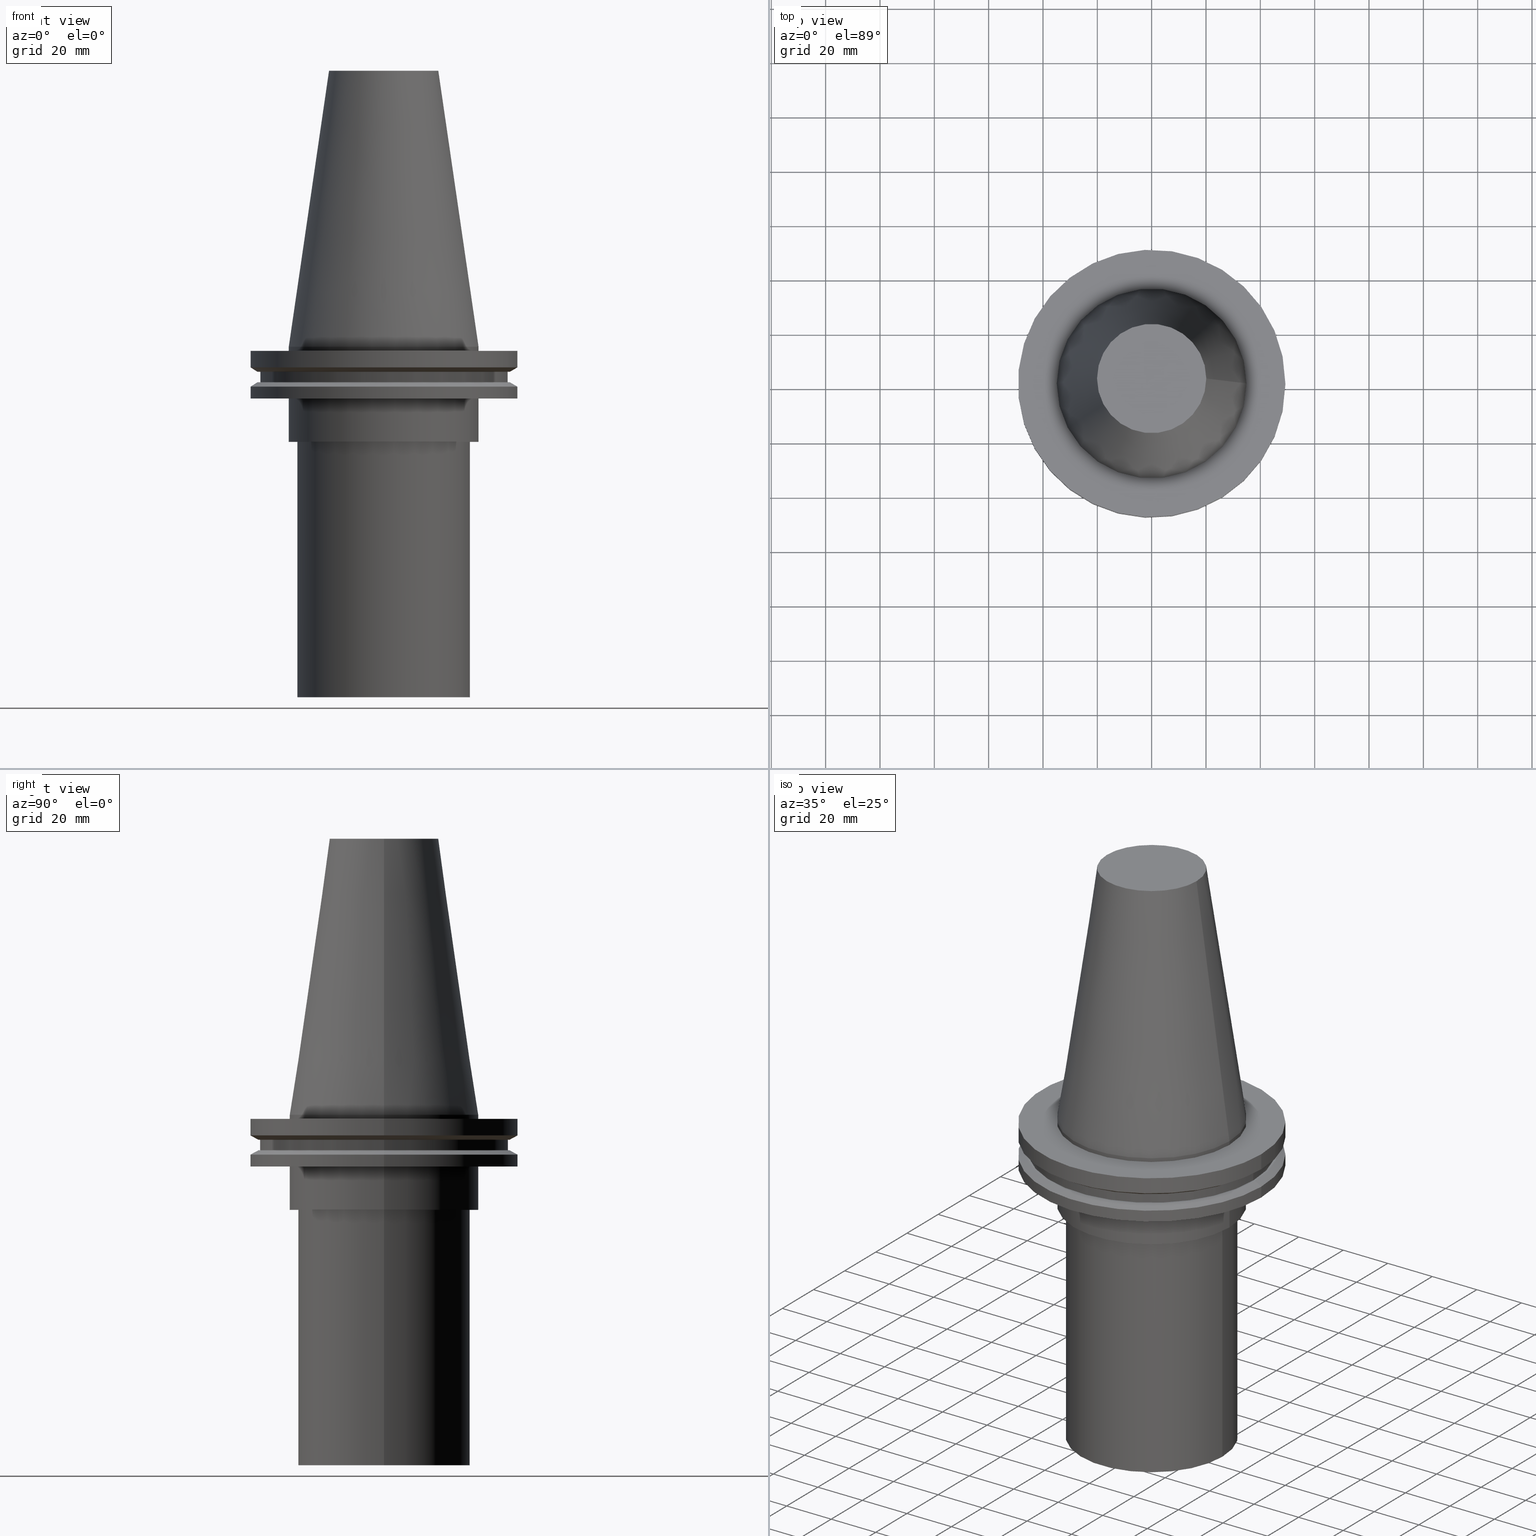
[diagram: canonical four-view strip — front | top / right | iso, engineering-drawing reading convention]
A machine part, canonical four-view strip (front | top / right | iso — engineering-drawing reading convention). The complete STEP part file that produces these views, byte-faithful:
ISO-10303-21;
HEADER;
FILE_DESCRIPTION (( 'STEP AP203' ),
    '1' );
FILE_NAME ('11.368.664.stp',
    '2022-03-09T15:22:07',
    ( '' ),
    ( '' ),
    'SwSTEP 2.0',
    'SolidWorks 2021',
    '' );
FILE_SCHEMA (( 'CONFIG_CONTROL_DESIGN' ));
ENDSEC;

DATA;
#1 = FACE_OUTER_BOUND ( 'NONE', #383, .T. ) ;
#2 = COORDINATED_UNIVERSAL_TIME_OFFSET ( 6, 0, .BEHIND. ) ;
#3 = CARTESIAN_POINT ( 'NONE',  ( 49.21499999999998920, 0.000000000000000000, -19.04999999999999716 ) ) ;
#4 = CONICAL_SURFACE ( 'NONE', #206, 34.92499999999999005, 0.1448138465474119452 ) ;
#5 =( LENGTH_UNIT ( ) NAMED_UNIT ( * ) SI_UNIT ( .MILLI., .METRE. ) );
#6 = FACE_OUTER_BOUND ( 'NONE', #294, .T. ) ;
#7 = EDGE_LOOP ( 'NONE', ( #59 ) ) ;
#8 = CARTESIAN_POINT ( 'NONE',  ( 0.000000000000000000, 0.000000000000000000, -129.0000000000000000 ) ) ;
#9 = EDGE_LOOP ( 'NONE', ( #173 ) ) ;
#10 = DIRECTION ( 'NONE',  ( 0.000000000000000000, -0.000000000000000000, 1.000000000000000000 ) ) ;
#11 = AXIS2_PLACEMENT_3D ( 'NONE', #317, #38, #163 ) ;
#12 = CIRCLE ( 'NONE', #74, 49.21499999999999631 ) ;
#13 = FACE_OUTER_BOUND ( 'NONE', #202, .T. ) ;
#14 = EDGE_LOOP ( 'NONE', ( #267 ) ) ;
#15 = ADVANCED_FACE ( 'NONE', ( #327, #46 ), #73, .F. ) ;
#16 = APPLICATION_CONTEXT ( 'configuration controlled 3d designs of mechanical parts and assemblies' ) ;
#17 = ORIENTED_EDGE ( 'NONE', *, *, #205, .T. ) ;
#18 = PERSON_AND_ORGANIZATION ( #360, #65 ) ;
#19 = EDGE_CURVE ( 'NONE', #276, #276, #321, .T. ) ;
#20 = EDGE_LOOP ( 'NONE', ( #157 ) ) ;
#21 = CIRCLE ( 'NONE', #354, 45.64500000000000313 ) ;
#22 = AXIS2_PLACEMENT_3D ( 'NONE', #50, #365, #24 ) ;
#23 = AXIS2_PLACEMENT_3D ( 'NONE', #291, #290, #171 ) ;
#24 = DIRECTION ( 'NONE',  ( 1.000000000000000000, 0.000000000000000000, 0.000000000000000000 ) ) ;
#25 = DIRECTION ( 'NONE',  ( 1.000000000000000000, 0.000000000000000000, 0.000000000000000000 ) ) ;
#26 = AXIS2_PLACEMENT_3D ( 'NONE', #187, #36, #162 ) ;
#27 = FACE_OUTER_BOUND ( 'NONE', #235, .T. ) ;
#28 = DIRECTION ( 'NONE',  ( -1.000000000000000000, 0.000000000000000000, 0.000000000000000000 ) ) ;
#29 = VERTEX_POINT ( 'NONE', #88 ) ;
#30 = CC_DESIGN_APPROVAL ( #100, ( #238 ) ) ;
#31 = DIRECTION ( 'NONE',  ( 0.000000000000000000, 0.000000000000000000, -1.000000000000000000 ) ) ;
#32 = AXIS2_PLACEMENT_3D ( 'NONE', #8, #57, #314 ) ;
#33 = DATE_TIME_ROLE ( 'creation_date' ) ;
#34 = DIRECTION ( 'NONE',  ( -0.000000000000000000, -0.000000000000000000, 1.000000000000000000 ) ) ;
#35 = APPROVAL_STATUS ( 'not_yet_approved' ) ;
#36 = DIRECTION ( 'NONE',  ( 0.000000000000000000, -0.000000000000000000, 1.000000000000000000 ) ) ;
#37 = CARTESIAN_POINT ( 'NONE',  ( 20.10819343178871321, 0.000000000000000000, 101.5999999999999801 ) ) ;
#38 = DIRECTION ( 'NONE',  ( -0.000000000000000000, -0.000000000000000000, 1.000000000000000000 ) ) ;
#39 = EDGE_LOOP ( 'NONE', ( #227 ) ) ;
#40 = PERSON_AND_ORGANIZATION ( #360, #65 ) ;
#41 = ADVANCED_FACE ( 'NONE', ( #166, #322 ), #229, .F. ) ;
#42 = CARTESIAN_POINT ( 'NONE',  ( 0.000000000000000000, 0.000000000000000000, -14.65761014474876944 ) ) ;
#43 = AXIS2_PLACEMENT_3D ( 'NONE', #92, #155, #279 ) ;
#44 = APPROVAL ( #35, 'UNSPECIFIED' ) ;
#45 = DIRECTION ( 'NONE',  ( -0.000000000000000000, -0.000000000000000000, 1.000000000000000000 ) ) ;
#46 = FACE_OUTER_BOUND ( 'NONE', #20, .T. ) ;
#47 = DIRECTION ( 'NONE',  ( 0.000000000000000000, 0.000000000000000000, -1.000000000000000000 ) ) ;
#48 = EDGE_LOOP ( 'NONE', ( #75 ) ) ;
#49 = AXIS2_PLACEMENT_3D ( 'NONE', #274, #333, #244 ) ;
#50 = CARTESIAN_POINT ( 'NONE',  ( 0.000000000000000000, 0.000000000000000000, 0.000000000000000000 ) ) ;
#51 = EDGE_CURVE ( 'NONE', #123, #123, #134, .T. ) ;
#52 = CIRCLE ( 'NONE', #176, 49.21500000000000341 ) ;
#53 = PLANE ( 'NONE',  #245 ) ;
#54 = DIRECTION ( 'NONE',  ( 1.000000000000000000, 0.000000000000000000, 0.000000000000000000 ) ) ;
#55 = AXIS2_PLACEMENT_3D ( 'NONE', #386, #136, #167 ) ;
#56 = APPROVAL_ROLE ( '' ) ;
#57 = DIRECTION ( 'NONE',  ( -0.000000000000000000, -0.000000000000000000, 1.000000000000000000 ) ) ;
#58 = EDGE_CURVE ( 'NONE', #370, #370, #70, .T. ) ;
#59 = ORIENTED_EDGE ( 'NONE', *, *, #19, .T. ) ;
#60 = CALENDAR_DATE ( 2022, 9, 3 ) ;
#61 = CARTESIAN_POINT ( 'NONE',  ( 0.000000000000000000, 0.000000000000000000, -9.204999999999991189 ) ) ;
#62 = EDGE_LOOP ( 'NONE', ( #248 ) ) ;
#63 = EDGE_LOOP ( 'NONE', ( #298 ) ) ;
#64 = DIRECTION ( 'NONE',  ( 1.000000000000000000, 0.000000000000000000, 0.000000000000000000 ) ) ;
#65 = ORGANIZATION ( 'UNSPECIFIED', 'UNSPECIFIED', '' ) ;
#66 = CC_DESIGN_PERSON_AND_ORGANIZATION_ASSIGNMENT ( #40, #359, ( #238 ) ) ;
#67 = AXIS2_PLACEMENT_3D ( 'NONE', #87, #117, #305 ) ;
#68 = CALENDAR_DATE ( 2022, 9, 3 ) ;
#69 = VERTEX_POINT ( 'NONE', #385 ) ;
#70 = CIRCLE ( 'NONE', #147, 31.75000000000000000 ) ;
#71 = DATE_AND_TIME ( #218, #324 ) ;
#72 = EDGE_LOOP ( 'NONE', ( #140 ) ) ;
#73 = PLANE ( 'NONE',  #55 ) ;
#74 = AXIS2_PLACEMENT_3D ( 'NONE', #99, #378, #192 ) ;
#75 = ORIENTED_EDGE ( 'NONE', *, *, #51, .F. ) ;
#76 = VERTEX_POINT ( 'NONE', #228 ) ;
#77 = DIRECTION ( 'NONE',  ( -0.000000000000000000, -0.000000000000000000, 1.000000000000000000 ) ) ;
#78 = CLOSED_SHELL ( 'NONE', ( #239, #216, #41, #302, #331, #194, #242, #15, #257, #161, #368, #297, #270, #137, #225, #351 ) ) ;
#79 = ORIENTED_EDGE ( 'NONE', *, *, #288, .F. ) ;
#80 = EDGE_LOOP ( 'NONE', ( #97 ) ) ;
#81 = EDGE_CURVE ( 'NONE', #76, #76, #132, .T. ) ;
#82 = FACE_OUTER_BOUND ( 'NONE', #164, .T. ) ;
#83 = FACE_OUTER_BOUND ( 'NONE', #200, .T. ) ;
#84 = DESIGN_CONTEXT ( 'detailed design', #16, 'design' ) ;
#85 = EDGE_CURVE ( 'NONE', #110, #110, #108, .T. ) ;
#86 = SECURITY_CLASSIFICATION ( '', '', #379 ) ;
#87 = CARTESIAN_POINT ( 'NONE',  ( 0.000000000000000000, 0.000000000000000000, 0.000000000000000000 ) ) ;
#88 = CARTESIAN_POINT ( 'NONE',  ( 45.64500000000000313, 0.000000000000000000, -13.05499999999999794 ) ) ;
#89 = FACE_OUTER_BOUND ( 'NONE', #234, .T. ) ;
#90 = CARTESIAN_POINT ( 'NONE',  ( 34.92499999999999716, 0.000000000000000000, -35.00000000000000000 ) ) ;
#91 = CARTESIAN_POINT ( 'NONE',  ( 31.75000000000000000, 0.000000000000000000, -35.00000000000000000 ) ) ;
#92 = CARTESIAN_POINT ( 'NONE',  ( 0.000000000000000000, 0.000000000000000000, 0.000000000000000000 ) ) ;
#93 = DIRECTION ( 'NONE',  ( -0.000000000000000000, -0.000000000000000000, 1.000000000000000000 ) ) ;
#94 = VERTEX_POINT ( 'NONE', #338 ) ;
#95 = AXIS2_PLACEMENT_3D ( 'NONE', #185, #130, #255 ) ;
#96 = FACE_BOUND ( 'NONE', #62, .T. ) ;
#97 = ORIENTED_EDGE ( 'NONE', *, *, #388, .F. ) ;
#98 = VERTEX_POINT ( 'NONE', #90 ) ;
#99 = CARTESIAN_POINT ( 'NONE',  ( 0.000000000000000000, 0.000000000000000000, -1.499999999999987566 ) ) ;
#100 = APPROVAL ( #374, 'UNSPECIFIED' ) ;
#101 = DIRECTION ( 'NONE',  ( -0.000000000000000000, -0.000000000000000000, 1.000000000000000000 ) ) ;
#102 =( GEOMETRIC_REPRESENTATION_CONTEXT ( 3 ) GLOBAL_UNCERTAINTY_ASSIGNED_CONTEXT ( ( #281 ) ) GLOBAL_UNIT_ASSIGNED_CONTEXT ( ( #5, #189, #313 ) ) REPRESENTATION_CONTEXT ( 'NONE', 'WORKASPACE' ) );
#103 = EDGE_LOOP ( 'NONE', ( #109 ) ) ;
#104 = AXIS2_PLACEMENT_3D ( 'NONE', #219, #159, #287 ) ;
#105 = DIRECTION ( 'NONE',  ( -0.000000000000000000, -0.000000000000000000, 1.000000000000000000 ) ) ;
#106 = AXIS2_PLACEMENT_3D ( 'NONE', #150, #337, #54 ) ;
#107 = DATE_AND_TIME ( #68, #272 ) ;
#108 = CIRCLE ( 'NONE', #340, 34.92499999999999716 ) ;
#109 = ORIENTED_EDGE ( 'NONE', *, *, #201, .T. ) ;
#110 = VERTEX_POINT ( 'NONE', #265 ) ;
#111 = DIRECTION ( 'NONE',  ( 1.000000000000000000, 0.000000000000000000, 0.000000000000000000 ) ) ;
#112 = DIRECTION ( 'NONE',  ( -0.000000000000000000, -0.000000000000000000, 1.000000000000000000 ) ) ;
#113 = AXIS2_PLACEMENT_3D ( 'NONE', #197, #105, #356 ) ;
#114 = APPROVAL ( #323, 'UNSPECIFIED' ) ;
#115 = DIRECTION ( 'NONE',  ( -0.000000000000000000, -0.000000000000000000, 1.000000000000000000 ) ) ;
#116 = APPLICATION_CONTEXT ( 'configuration controlled 3d designs of mechanical parts and assemblies' ) ;
#117 = DIRECTION ( 'NONE',  ( -0.000000000000000000, -0.000000000000000000, 1.000000000000000000 ) ) ;
#118 = FACE_BOUND ( 'NONE', #80, .T. ) ;
#119 = DIRECTION ( 'NONE',  ( -0.000000000000000000, -0.000000000000000000, 1.000000000000000000 ) ) ;
#120 = LOCAL_TIME ( 9, 22, 7.000000000000000000, #345 ) ;
#121 = CALENDAR_DATE ( 2022, 9, 3 ) ;
#122 = FACE_OUTER_BOUND ( 'NONE', #14, .T. ) ;
#123 = VERTEX_POINT ( 'NONE', #247 ) ;
#124 = PERSON_AND_ORGANIZATION ( #360, #65 ) ;
#125 = DIRECTION ( 'NONE',  ( -0.000000000000000000, -0.000000000000000000, 1.000000000000000000 ) ) ;
#126 = PERSON_AND_ORGANIZATION ( #360, #65 ) ;
#127 = DIRECTION ( 'NONE',  ( 1.000000000000000000, 0.000000000000000000, 0.000000000000000000 ) ) ;
#128 = COORDINATED_UNIVERSAL_TIME_OFFSET ( 6, 0, .BEHIND. ) ;
#129 = AXIS2_PLACEMENT_3D ( 'NONE', #61, #34, #64 ) ;
#130 = DIRECTION ( 'NONE',  ( -0.000000000000000000, -0.000000000000000000, 1.000000000000000000 ) ) ;
#131 = PRODUCT_RELATED_PRODUCT_CATEGORY ( 'detail', '', ( #395 ) ) ;
#132 = CIRCLE ( 'NONE', #113, 34.92499999999999005 ) ;
#133 = CARTESIAN_POINT ( 'NONE',  ( 0.000000000000000000, 0.000000000000000000, 101.5999999999999801 ) ) ;
#134 = CIRCLE ( 'NONE', #306, 49.21499999999998920 ) ;
#135 = ORIENTED_EDGE ( 'NONE', *, *, #205, .F. ) ;
#136 = DIRECTION ( 'NONE',  ( 0.000000000000000000, 0.000000000000000000, -1.000000000000000000 ) ) ;
#137 = ADVANCED_FACE ( 'NONE', ( #387, #1 ), #393, .T. ) ;
#138 = PERSON_AND_ORGANIZATION_ROLE ( 'classification_officer' ) ;
#139 = VERTEX_POINT ( 'NONE', #369 ) ;
#140 = ORIENTED_EDGE ( 'NONE', *, *, #288, .T. ) ;
#141 = PERSON_AND_ORGANIZATION ( #360, #65 ) ;
#142 = EDGE_LOOP ( 'NONE', ( #344 ) ) ;
#143 = EDGE_LOOP ( 'NONE', ( #135 ) ) ;
#144 = CIRCLE ( 'NONE', #95, 46.43919780457007818 ) ;
#145 = PRODUCT_DEFINITION ( 'UNKNOWN', '', #238, #84 ) ;
#146 = DIRECTION ( 'NONE',  ( -1.000000000000000000, 0.000000000000000000, -0.000000000000000000 ) ) ;
#147 = AXIS2_PLACEMENT_3D ( 'NONE', #169, #77, #260 ) ;
#148 = FACE_OUTER_BOUND ( 'NONE', #188, .T. ) ;
#149 = LOCAL_TIME ( 9, 22, 7.000000000000000000, #2 ) ;
#150 = CARTESIAN_POINT ( 'NONE',  ( 0.000000000000000000, 0.000000000000000000, -9.204999999999991189 ) ) ;
#151 = DIRECTION ( 'NONE',  ( -0.000000000000000000, -0.000000000000000000, 1.000000000000000000 ) ) ;
#152 = DIRECTION ( 'NONE',  ( 1.000000000000000000, 0.000000000000000000, 0.000000000000000000 ) ) ;
#153 = VERTEX_POINT ( 'NONE', #184 ) ;
#154 = CIRCLE ( 'NONE', #32, 31.75000000000000000 ) ;
#155 = DIRECTION ( 'NONE',  ( 0.000000000000000000, 0.000000000000000000, 1.000000000000000000 ) ) ;
#156 = CARTESIAN_POINT ( 'NONE',  ( 0.000000000000000000, 0.000000000000000000, 101.5999999999999943 ) ) ;
#157 = ORIENTED_EDGE ( 'NONE', *, *, #355, .T. ) ;
#158 = CIRCLE ( 'NONE', #106, 46.43919780457007818 ) ;
#159 = DIRECTION ( 'NONE',  ( -0.000000000000000000, -0.000000000000000000, 1.000000000000000000 ) ) ;
#160 = MANIFOLD_SOLID_BREP ( 'CKB', #78 ) ;
#161 = ADVANCED_FACE ( 'NONE', ( #27, #241 ), #209, .F. ) ;
#162 = DIRECTION ( 'NONE',  ( 1.000000000000000000, 0.000000000000000000, 0.000000000000000000 ) ) ;
#163 = DIRECTION ( 'NONE',  ( 1.000000000000000000, 0.000000000000000000, 0.000000000000000000 ) ) ;
#164 = EDGE_LOOP ( 'NONE', ( #203 ) ) ;
#165 = DATE_TIME_ROLE ( 'classification_date' ) ;
#166 = FACE_BOUND ( 'NONE', #217, .T. ) ;
#167 = DIRECTION ( 'NONE',  ( -1.000000000000000000, 0.000000000000000000, -0.000000000000000000 ) ) ;
#168 = ORIENTED_EDGE ( 'NONE', *, *, #201, .F. ) ;
#169 = CARTESIAN_POINT ( 'NONE',  ( 0.000000000000000000, 0.000000000000000000, -35.00000000000000000 ) ) ;
#170 = CC_DESIGN_DATE_AND_TIME_ASSIGNMENT ( #186, #33, ( #145 ) ) ;
#171 = DIRECTION ( 'NONE',  ( 1.000000000000000000, 0.000000000000000000, 0.000000000000000000 ) ) ;
#172 = CC_DESIGN_APPROVAL ( #114, ( #86 ) ) ;
#173 = ORIENTED_EDGE ( 'NONE', *, *, #309, .T. ) ;
#174 = FACE_OUTER_BOUND ( 'NONE', #289, .T. ) ;
#175 = DIRECTION ( 'NONE',  ( 1.000000000000000000, 0.000000000000000000, 0.000000000000000000 ) ) ;
#176 = AXIS2_PLACEMENT_3D ( 'NONE', #303, #151, #152 ) ;
#177 = FACE_BOUND ( 'NONE', #347, .T. ) ;
#178 = CARTESIAN_POINT ( 'NONE',  ( 0.000000000000000000, 0.000000000000000000, 101.5999999999999943 ) ) ;
#179 = CIRCLE ( 'NONE', #11, 34.92499999999999716 ) ;
#180 = FACE_OUTER_BOUND ( 'NONE', #329, .T. ) ;
#181 = APPROVAL_ROLE ( '' ) ;
#182 = DIRECTION ( 'NONE',  ( 1.000000000000000000, 0.000000000000000000, 0.000000000000000000 ) ) ;
#183 = EDGE_CURVE ( 'NONE', #69, #69, #52, .T. ) ;
#184 = CARTESIAN_POINT ( 'NONE',  ( 31.75000000000000000, 0.000000000000000000, -129.0000000000000000 ) ) ;
#185 = CARTESIAN_POINT ( 'NONE',  ( 0.000000000000000000, 0.000000000000000000, -13.05499999999999794 ) ) ;
#186 = DATE_AND_TIME ( #60, #120 ) ;
#187 = CARTESIAN_POINT ( 'NONE',  ( 0.000000000000000000, 49.21499999999998920, -19.04999999999999716 ) ) ;
#188 = EDGE_LOOP ( 'NONE', ( #254 ) ) ;
#189 =( NAMED_UNIT ( * ) PLANE_ANGLE_UNIT ( ) SI_UNIT ( $, .RADIAN. ) );
#190 = CARTESIAN_POINT ( 'NONE',  ( 0.000000000000000000, 0.000000000000000000, -9.204999999999991189 ) ) ;
#191 = EDGE_LOOP ( 'NONE', ( #380 ) ) ;
#192 = DIRECTION ( 'NONE',  ( 1.000000000000000000, 0.000000000000000000, 0.000000000000000000 ) ) ;
#193 = CALENDAR_DATE ( 2022, 9, 3 ) ;
#194 = ADVANCED_FACE ( 'NONE', ( #362, #361 ), #367, .T. ) ;
#195 = CARTESIAN_POINT ( 'NONE',  ( 0.000000000000000000, 0.000000000000000000, -19.04999999999999716 ) ) ;
#196 = PERSON_AND_ORGANIZATION_ROLE ( 'creator' ) ;
#197 = CARTESIAN_POINT ( 'NONE',  ( 0.000000000000000000, 0.000000000000000000, -1.499999999999987566 ) ) ;
#198 = COORDINATED_UNIVERSAL_TIME_OFFSET ( 6, 0, .BEHIND. ) ;
#199 = CARTESIAN_POINT ( 'NONE',  ( 0.000000000000000000, 0.000000000000000000, -19.04999999999999716 ) ) ;
#200 = EDGE_LOOP ( 'NONE', ( #17 ) ) ;
#201 = EDGE_CURVE ( 'NONE', #320, #320, #158, .T. ) ;
#202 = EDGE_LOOP ( 'NONE', ( #277 ) ) ;
#203 = ORIENTED_EDGE ( 'NONE', *, *, #381, .T. ) ;
#204 = CARTESIAN_POINT ( 'NONE',  ( 0.000000000000000000, 20.10819343178871321, 101.5999999999999943 ) ) ;
#205 = EDGE_CURVE ( 'NONE', #139, #139, #266, .T. ) ;
#206 = AXIS2_PLACEMENT_3D ( 'NONE', #207, #47, #28 ) ;
#207 = CARTESIAN_POINT ( 'NONE',  ( 0.000000000000000000, 0.000000000000000000, 0.000000000000000000 ) ) ;
#208 = DIRECTION ( 'NONE',  ( 1.000000000000000000, 0.000000000000000000, 0.000000000000000000 ) ) ;
#209 = PLANE ( 'NONE',  #357 ) ;
#210 = CC_DESIGN_PERSON_AND_ORGANIZATION_ASSIGNMENT ( #249, #394, ( #395 ) ) ;
#211 = CARTESIAN_POINT ( 'NONE',  ( 0.000000000000000000, 0.000000000000000000, 101.5999999999999943 ) ) ;
#212 = AXIS2_PLACEMENT_3D ( 'NONE', #178, #119, #392 ) ;
#213 = VERTEX_POINT ( 'NONE', #246 ) ;
#214 = PERSON_AND_ORGANIZATION_ROLE ( 'creator' ) ;
#215 = DIRECTION ( 'NONE',  ( 1.000000000000000000, 0.000000000000000000, 0.000000000000000000 ) ) ;
#216 = ADVANCED_FACE ( 'NONE', ( #148 ), #53, .F. ) ;
#217 = EDGE_LOOP ( 'NONE', ( #377 ) ) ;
#218 = CALENDAR_DATE ( 2022, 9, 3 ) ;
#219 = CARTESIAN_POINT ( 'NONE',  ( 0.000000000000000000, 0.000000000000000000, 101.5999999999999943 ) ) ;
#220 = EDGE_LOOP ( 'NONE', ( #349 ) ) ;
#221 = APPLICATION_PROTOCOL_DEFINITION ( 'international standard', 'config_control_design', 1994, #16 ) ;
#222 = DIRECTION ( 'NONE',  ( -0.000000000000000000, -0.000000000000000000, 1.000000000000000000 ) ) ;
#223 = ORIENTED_EDGE ( 'NONE', *, *, #343, .T. ) ;
#224 = APPROVAL_DATE_TIME ( #107, #114 ) ;
#225 = ADVANCED_FACE ( 'NONE', ( #180, #335 ), #271, .T. ) ;
#226 = CONICAL_SURFACE ( 'NONE', #49, 49.21499999999998920, 1.047197551196554333 ) ;
#227 = ORIENTED_EDGE ( 'NONE', *, *, #384, .F. ) ;
#228 = CARTESIAN_POINT ( 'NONE',  ( 34.92499999999999005, 0.000000000000000000, -1.499999999999987566 ) ) ;
#229 = PLANE ( 'NONE',  #23 ) ;
#230 = ORIENTED_EDGE ( 'NONE', *, *, #85, .F. ) ;
#231 = APPROVAL_DATE_TIME ( #71, #100 ) ;
#232 = AXIS2_PLACEMENT_3D ( 'NONE', #133, #101, #182 ) ;
#233 = DIRECTION ( 'NONE',  ( 1.000000000000000000, 0.000000000000000000, 0.000000000000000000 ) ) ;
#234 = EDGE_LOOP ( 'NONE', ( #79 ) ) ;
#235 = EDGE_LOOP ( 'NONE', ( #168 ) ) ;
#236 = ORIENTED_EDGE ( 'NONE', *, *, #81, .F. ) ;
#237 = CARTESIAN_POINT ( 'NONE',  ( 0.000000000000000000, 49.21499999999999631, -1.499999999999992895 ) ) ;
#238 = PRODUCT_DEFINITION_FORMATION_WITH_SPECIFIED_SOURCE ( 'ANY', '', #395, .NOT_KNOWN. ) ;
#239 = ADVANCED_FACE ( 'NONE', ( #118, #83 ), #4, .T. ) ;
#240 = PLANE ( 'NONE',  #262 ) ;
#241 = FACE_BOUND ( 'NONE', #72, .T. ) ;
#242 = ADVANCED_FACE ( 'NONE', ( #334, #122 ), #226, .T. ) ;
#243 = VERTEX_POINT ( 'NONE', #275 ) ;
#244 = DIRECTION ( 'NONE',  ( -1.000000000000000000, 0.000000000000000000, 0.000000000000000000 ) ) ;
#245 = AXIS2_PLACEMENT_3D ( 'NONE', #204, #300, #146 ) ;
#246 = CARTESIAN_POINT ( 'NONE',  ( 46.43919780457007818, 0.000000000000000000, -13.05499999999999794 ) ) ;
#247 = CARTESIAN_POINT ( 'NONE',  ( 49.21499999999998920, 0.000000000000000000, -14.65761014474876944 ) ) ;
#248 = ORIENTED_EDGE ( 'NONE', *, *, #85, .T. ) ;
#249 = PERSON_AND_ORGANIZATION ( #360, #65 ) ;
#250 = CC_DESIGN_PERSON_AND_ORGANIZATION_ASSIGNMENT ( #124, #214, ( #145 ) ) ;
#251 = FACE_BOUND ( 'NONE', #103, .T. ) ;
#252 = PERSON_AND_ORGANIZATION ( #360, #65 ) ;
#253 = CYLINDRICAL_SURFACE ( 'NONE', #104, 49.21499999999999631 ) ;
#254 = ORIENTED_EDGE ( 'NONE', *, *, #388, .T. ) ;
#255 = DIRECTION ( 'NONE',  ( 1.000000000000000000, 0.000000000000000000, 0.000000000000000000 ) ) ;
#256 = FACE_OUTER_BOUND ( 'NONE', #284, .T. ) ;
#257 = ADVANCED_FACE ( 'NONE', ( #89, #174 ), #273, .T. ) ;
#258 = DATE_AND_TIME ( #193, #259 ) ;
#259 = LOCAL_TIME ( 9, 22, 7.000000000000000000, #198 ) ;
#260 = DIRECTION ( 'NONE',  ( 1.000000000000000000, 0.000000000000000000, 0.000000000000000000 ) ) ;
#261 = CIRCLE ( 'NONE', #336, 45.64500000000000313 ) ;
#262 = AXIS2_PLACEMENT_3D ( 'NONE', #237, #31, #339 ) ;
#263 = DIRECTION ( 'NONE',  ( -0.000000000000000000, -0.000000000000000000, 1.000000000000000000 ) ) ;
#264 = ORIENTED_EDGE ( 'NONE', *, *, #58, .F. ) ;
#265 = CARTESIAN_POINT ( 'NONE',  ( 34.92499999999999716, 0.000000000000000000, -19.04999999999999716 ) ) ;
#266 = CIRCLE ( 'NONE', #22, 34.92499999999999005 ) ;
#267 = ORIENTED_EDGE ( 'NONE', *, *, #51, .T. ) ;
#268 = PRODUCT_DEFINITION_SHAPE ( 'NONE', 'NONE',  #145 ) ;
#269 = CARTESIAN_POINT ( 'NONE',  ( 0.000000000000000000, 0.000000000000000000, 101.5999999999999943 ) ) ;
#270 = ADVANCED_FACE ( 'NONE', ( #177, #82 ), #240, .F. ) ;
#271 = CYLINDRICAL_SURFACE ( 'NONE', #67, 31.75000000000000000 ) ;
#272 = LOCAL_TIME ( 9, 22, 7.000000000000000000, #326 ) ;
#273 = CYLINDRICAL_SURFACE ( 'NONE', #310, 45.64500000000000313 ) ;
#274 = CARTESIAN_POINT ( 'NONE',  ( 0.000000000000000000, 0.000000000000000000, -14.65761014474876944 ) ) ;
#275 = CARTESIAN_POINT ( 'NONE',  ( 45.64500000000000313, 0.000000000000000000, -9.204999999999991189 ) ) ;
#276 = VERTEX_POINT ( 'NONE', #3 ) ;
#277 = ORIENTED_EDGE ( 'NONE', *, *, #309, .F. ) ;
#278 = CC_DESIGN_DATE_AND_TIME_ASSIGNMENT ( #258, #165, ( #86 ) ) ;
#279 = DIRECTION ( 'NONE',  ( 1.000000000000000000, 0.000000000000000000, 0.000000000000000000 ) ) ;
#280 = FACE_OUTER_BOUND ( 'NONE', #353, .T. ) ;
#281 = UNCERTAINTY_MEASURE_WITH_UNIT (LENGTH_MEASURE( 1.000000000000000082E-05 ), #5, 'distance_accuracy_value', 'NONE');
#282 = APPLICATION_PROTOCOL_DEFINITION ( 'international standard', 'config_control_design', 1994, #116 ) ;
#283 = CYLINDRICAL_SURFACE ( 'NONE', #332, 34.92499999999999716 ) ;
#284 = EDGE_LOOP ( 'NONE', ( #295 ) ) ;
#285 = DIRECTION ( 'NONE',  ( 1.000000000000000000, 0.000000000000000000, 0.000000000000000000 ) ) ;
#286 = ADVANCED_BREP_SHAPE_REPRESENTATION ( '11.368.664', ( #160, #43 ), #102 ) ;
#287 = DIRECTION ( 'NONE',  ( 1.000000000000000000, 0.000000000000000000, 0.000000000000000000 ) ) ;
#288 = EDGE_CURVE ( 'NONE', #243, #243, #21, .T. ) ;
#289 = EDGE_LOOP ( 'NONE', ( #223 ) ) ;
#290 = DIRECTION ( 'NONE',  ( 0.000000000000000000, -0.000000000000000000, 1.000000000000000000 ) ) ;
#291 = CARTESIAN_POINT ( 'NONE',  ( 0.000000000000000000, 34.92499999999999716, -35.00000000000000000 ) ) ;
#292 = APPROVAL_ROLE ( '' ) ;
#293 = CARTESIAN_POINT ( 'NONE',  ( 46.43919780457007818, 0.000000000000000000, -9.204999999999991189 ) ) ;
#294 = EDGE_LOOP ( 'NONE', ( #372 ) ) ;
#295 = ORIENTED_EDGE ( 'NONE', *, *, #183, .T. ) ;
#296 = EDGE_LOOP ( 'NONE', ( #230 ) ) ;
#297 = ADVANCED_FACE ( 'NONE', ( #6, #256 ), #253, .T. ) ;
#298 = ORIENTED_EDGE ( 'NONE', *, *, #19, .F. ) ;
#299 = DIRECTION ( 'NONE',  ( 0.000000000000000000, -0.000000000000000000, 1.000000000000000000 ) ) ;
#300 = DIRECTION ( 'NONE',  ( 0.000000000000000000, 0.000000000000000000, -1.000000000000000000 ) ) ;
#301 = CC_DESIGN_APPROVAL ( #44, ( #145 ) ) ;
#302 = ADVANCED_FACE ( 'NONE', ( #346, #342 ), #283, .T. ) ;
#303 = CARTESIAN_POINT ( 'NONE',  ( 0.000000000000000000, 0.000000000000000000, -7.602389855251287187 ) ) ;
#304 = CONICAL_SURFACE ( 'NONE', #129, 46.43919780457007818, 1.047197551196575205 ) ;
#305 = DIRECTION ( 'NONE',  ( 1.000000000000000000, 0.000000000000000000, 0.000000000000000000 ) ) ;
#306 = AXIS2_PLACEMENT_3D ( 'NONE', #42, #112, #233 ) ;
#307 = CARTESIAN_POINT ( 'NONE',  ( 0.000000000000000000, 31.75000000000000000, -129.0000000000000000 ) ) ;
#308 = DATE_AND_TIME ( #121, #149 ) ;
#309 = EDGE_CURVE ( 'NONE', #153, #153, #154, .T. ) ;
#310 = AXIS2_PLACEMENT_3D ( 'NONE', #269, #115, #25 ) ;
#311 = MECHANICAL_CONTEXT ( 'NONE', #116, 'mechanical' ) ;
#312 = PLANE ( 'NONE',  #26 ) ;
#313 =( NAMED_UNIT ( * ) SI_UNIT ( $, .STERADIAN. ) SOLID_ANGLE_UNIT ( ) );
#314 = DIRECTION ( 'NONE',  ( 1.000000000000000000, 0.000000000000000000, 0.000000000000000000 ) ) ;
#315 = ORIENTED_EDGE ( 'NONE', *, *, #183, .F. ) ;
#316 = APPROVAL_DATE_TIME ( #308, #44 ) ;
#317 = CARTESIAN_POINT ( 'NONE',  ( 0.000000000000000000, 0.000000000000000000, -35.00000000000000000 ) ) ;
#318 = ORIENTED_EDGE ( 'NONE', *, *, #81, .T. ) ;
#319 = SHAPE_DEFINITION_REPRESENTATION ( #268, #286 ) ;
#320 = VERTEX_POINT ( 'NONE', #293 ) ;
#321 = CIRCLE ( 'NONE', #350, 49.21499999999998920 ) ;
#322 = FACE_OUTER_BOUND ( 'NONE', #39, .T. ) ;
#323 = APPROVAL_STATUS ( 'not_yet_approved' ) ;
#324 = LOCAL_TIME ( 9, 22, 7.000000000000000000, #128 ) ;
#325 = DIRECTION ( 'NONE',  ( 1.000000000000000000, 0.000000000000000000, 0.000000000000000000 ) ) ;
#326 = COORDINATED_UNIVERSAL_TIME_OFFSET ( 6, 0, .BEHIND. ) ;
#327 = FACE_BOUND ( 'NONE', #142, .T. ) ;
#328 = PERSON_AND_ORGANIZATION ( #360, #65 ) ;
#329 = EDGE_LOOP ( 'NONE', ( #264 ) ) ;
#330 = APPROVAL_PERSON_ORGANIZATION ( #126, #44, #56 ) ;
#331 = ADVANCED_FACE ( 'NONE', ( #375, #96 ), #312, .F. ) ;
#332 = AXIS2_PLACEMENT_3D ( 'NONE', #156, #125, #352 ) ;
#333 = DIRECTION ( 'NONE',  ( 0.000000000000000000, 0.000000000000000000, -1.000000000000000000 ) ) ;
#334 = FACE_BOUND ( 'NONE', #220, .T. ) ;
#335 = FACE_OUTER_BOUND ( 'NONE', #9, .T. ) ;
#336 = AXIS2_PLACEMENT_3D ( 'NONE', #371, #93, #215 ) ;
#337 = DIRECTION ( 'NONE',  ( -0.000000000000000000, -0.000000000000000000, 1.000000000000000000 ) ) ;
#338 = CARTESIAN_POINT ( 'NONE',  ( 49.21499999999999631, 0.000000000000000000, -1.499999999999987566 ) ) ;
#339 = DIRECTION ( 'NONE',  ( -1.000000000000000000, 0.000000000000000000, -0.000000000000000000 ) ) ;
#340 = AXIS2_PLACEMENT_3D ( 'NONE', #195, #263, #325 ) ;
#341 = VERTEX_POINT ( 'NONE', #37 ) ;
#342 = FACE_OUTER_BOUND ( 'NONE', #191, .T. ) ;
#343 = EDGE_CURVE ( 'NONE', #29, #29, #261, .T. ) ;
#344 = ORIENTED_EDGE ( 'NONE', *, *, #343, .F. ) ;
#345 = COORDINATED_UNIVERSAL_TIME_OFFSET ( 6, 0, .BEHIND. ) ;
#346 = FACE_OUTER_BOUND ( 'NONE', #296, .T. ) ;
#347 = EDGE_LOOP ( 'NONE', ( #236 ) ) ;
#348 = PLANE ( 'NONE',  #391 ) ;
#349 = ORIENTED_EDGE ( 'NONE', *, *, #355, .F. ) ;
#350 = AXIS2_PLACEMENT_3D ( 'NONE', #199, #45, #111 ) ;
#351 = ADVANCED_FACE ( 'NONE', ( #13 ), #348, .F. ) ;
#352 = DIRECTION ( 'NONE',  ( 1.000000000000000000, 0.000000000000000000, 0.000000000000000000 ) ) ;
#353 = EDGE_LOOP ( 'NONE', ( #315 ) ) ;
#354 = AXIS2_PLACEMENT_3D ( 'NONE', #190, #222, #127 ) ;
#355 = EDGE_CURVE ( 'NONE', #213, #213, #144, .T. ) ;
#356 = DIRECTION ( 'NONE',  ( 1.000000000000000000, 0.000000000000000000, 0.000000000000000000 ) ) ;
#357 = AXIS2_PLACEMENT_3D ( 'NONE', #364, #299, #175 ) ;
#358 = APPROVAL_PERSON_ORGANIZATION ( #252, #100, #181 ) ;
#359 = PERSON_AND_ORGANIZATION_ROLE ( 'design_supplier' ) ;
#360 = PERSON ( 'UNSPECIFIED', 'UNSPECIFIED', 'UNSPECIFIED', ('UNSPECIFIED'), ('UNSPECIFIED'), ('UNSPECIFIED') ) ;
#361 = FACE_OUTER_BOUND ( 'NONE', #7, .T. ) ;
#362 = FACE_OUTER_BOUND ( 'NONE', #48, .T. ) ;
#363 = CC_DESIGN_PERSON_AND_ORGANIZATION_ASSIGNMENT ( #18, #138, ( #86 ) ) ;
#364 = CARTESIAN_POINT ( 'NONE',  ( 0.000000000000000000, 46.43919780457007818, -9.204999999999998295 ) ) ;
#365 = DIRECTION ( 'NONE',  ( -0.000000000000000000, -0.000000000000000000, 1.000000000000000000 ) ) ;
#366 = CIRCLE ( 'NONE', #232, 20.10819343178871321 ) ;
#367 = CYLINDRICAL_SURFACE ( 'NONE', #382, 49.21499999999998920 ) ;
#368 = ADVANCED_FACE ( 'NONE', ( #280, #251 ), #304, .T. ) ;
#369 = CARTESIAN_POINT ( 'NONE',  ( 34.92499999999999005, 0.000000000000000000, 0.000000000000000000 ) ) ;
#370 = VERTEX_POINT ( 'NONE', #91 ) ;
#371 = CARTESIAN_POINT ( 'NONE',  ( 0.000000000000000000, 0.000000000000000000, -13.05499999999999794 ) ) ;
#372 = ORIENTED_EDGE ( 'NONE', *, *, #381, .F. ) ;
#373 = CC_DESIGN_SECURITY_CLASSIFICATION ( #86, ( #238 ) ) ;
#374 = APPROVAL_STATUS ( 'not_yet_approved' ) ;
#375 = FACE_OUTER_BOUND ( 'NONE', #63, .T. ) ;
#376 = CC_DESIGN_PERSON_AND_ORGANIZATION_ASSIGNMENT ( #141, #196, ( #238 ) ) ;
#377 = ORIENTED_EDGE ( 'NONE', *, *, #58, .T. ) ;
#378 = DIRECTION ( 'NONE',  ( -0.000000000000000000, -0.000000000000000000, 1.000000000000000000 ) ) ;
#379 = SECURITY_CLASSIFICATION_LEVEL ( 'unclassified' ) ;
#380 = ORIENTED_EDGE ( 'NONE', *, *, #384, .T. ) ;
#381 = EDGE_CURVE ( 'NONE', #94, #94, #12, .T. ) ;
#382 = AXIS2_PLACEMENT_3D ( 'NONE', #211, #390, #208 ) ;
#383 = EDGE_LOOP ( 'NONE', ( #318 ) ) ;
#384 = EDGE_CURVE ( 'NONE', #98, #98, #179, .T. ) ;
#385 = CARTESIAN_POINT ( 'NONE',  ( 49.21500000000000341, 0.000000000000000000, -7.602389855251287187 ) ) ;
#386 = CARTESIAN_POINT ( 'NONE',  ( 0.000000000000000000, 45.64500000000000313, -13.05499999999999794 ) ) ;
#387 = FACE_OUTER_BOUND ( 'NONE', #143, .T. ) ;
#388 = EDGE_CURVE ( 'NONE', #341, #341, #366, .T. ) ;
#389 = APPROVAL_PERSON_ORGANIZATION ( #328, #114, #292 ) ;
#390 = DIRECTION ( 'NONE',  ( -0.000000000000000000, -0.000000000000000000, 1.000000000000000000 ) ) ;
#391 = AXIS2_PLACEMENT_3D ( 'NONE', #307, #10, #285 ) ;
#392 = DIRECTION ( 'NONE',  ( 1.000000000000000000, 0.000000000000000000, 0.000000000000000000 ) ) ;
#393 = CYLINDRICAL_SURFACE ( 'NONE', #212, 34.92499999999999005 ) ;
#394 = PERSON_AND_ORGANIZATION_ROLE ( 'design_owner' ) ;
#395 = PRODUCT ( '11.368.664', '11.368.664', '', ( #311 ) ) ;
ENDSEC;
END-ISO-10303-21;
